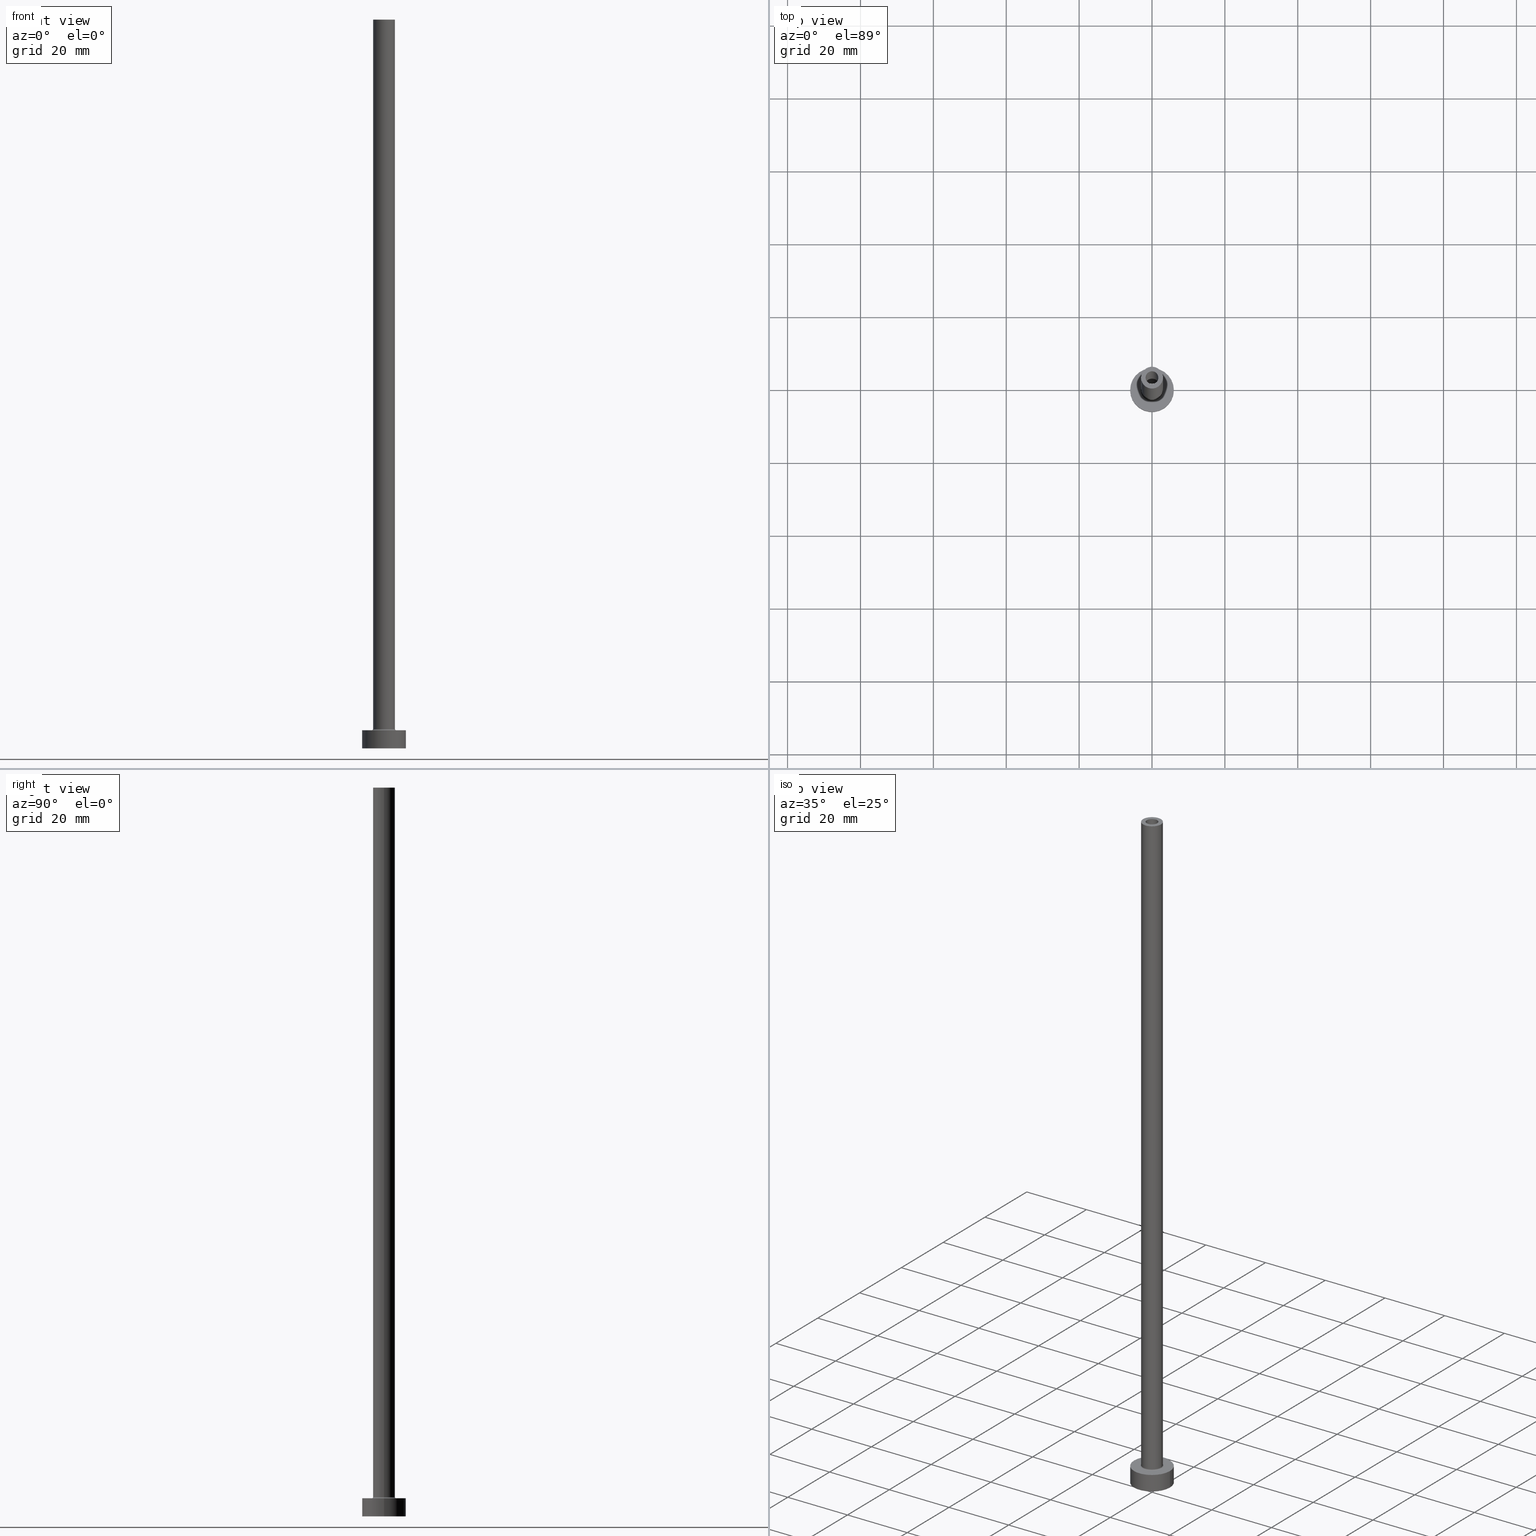
[diagram: canonical four-view strip — front | top / right | iso, engineering-drawing reading convention]
A machine part, canonical four-view strip (front | top / right | iso — engineering-drawing reading convention). The complete STEP part file that produces these views, byte-faithful:
ISO-10303-21;
HEADER;
FILE_DESCRIPTION (( 'STEP AP203' ),
    '1' );
FILE_NAME ('067c.STEP',
    '2023-02-13T12:00:21',
    ( '' ),
    ( '' ),
    'SwSTEP 2.0',
    'SolidWorks 2019',
    '' );
FILE_SCHEMA (( 'CONFIG_CONTROL_DESIGN' ));
ENDSEC;

DATA;
#1 = AXIS2_PLACEMENT_3D ( 'NONE', #203, #85, #125 ) ;
#2 = EDGE_CURVE ( 'NONE', #436, #320, #343, .T. ) ;
#3 = AXIS2_PLACEMENT_3D ( 'NONE', #213, #41, #35 ) ;
#4 = DIRECTION ( 'NONE',  ( -1.000000000000000000, 0.000000000000000000, 0.000000000000000000 ) ) ;
#5 = CARTESIAN_POINT ( 'NONE',  ( -1.899999999999999911, 0.000000000000000000, 160.3740115370177932 ) ) ;
#6 = PRODUCT_RELATED_PRODUCT_CATEGORY ( 'detail', '', ( #188 ) ) ;
#7 = DIRECTION ( 'NONE',  ( 0.000000000000000000, 0.000000000000000000, 1.000000000000000000 ) ) ;
#8 = DIRECTION ( 'NONE',  ( 0.000000000000000000, 0.000000000000000000, 1.000000000000000000 ) ) ;
#9 = PRODUCT_DEFINITION_SHAPE ( 'NONE', 'NONE',  #121 ) ;
#10 = CIRCLE ( 'NONE', #281, 1.899999999999999911 ) ;
#11 = CC_DESIGN_APPROVAL ( #94, ( #189 ) ) ;
#12 = EDGE_LOOP ( 'NONE', ( #244, #406 ) ) ;
#13 = DIRECTION ( 'NONE',  ( 0.000000000000000000, 0.000000000000000000, 1.000000000000000000 ) ) ;
#14 = PERSON_AND_ORGANIZATION ( #265, #325 ) ;
#15 = ORIENTED_EDGE ( 'NONE', *, *, #240, .F. ) ;
#16 = CARTESIAN_POINT ( 'NONE',  ( 0.000000000000000000, 0.000000000000000000, 200.0000000000000000 ) ) ;
#17 = CIRCLE ( 'NONE', #224, 1.750000000000000000 ) ;
#18 = CIRCLE ( 'NONE', #255, 3.000000000000000444 ) ;
#19 = APPROVAL_ROLE ( '' ) ;
#20 = EDGE_LOOP ( 'NONE', ( #223, #452, #358, #137 ) ) ;
#21 = SHAPE_DEFINITION_REPRESENTATION ( #9, #71 ) ;
#22 = EDGE_LOOP ( 'NONE', ( #299, #225 ) ) ;
#23 = FACE_BOUND ( 'NONE', #171, .T. ) ;
#24 = ORIENTED_EDGE ( 'NONE', *, *, #257, .T. ) ;
#25 = LOCAL_TIME ( 13, 0, 21.00000000000000000, #247 ) ;
#26 = EDGE_LOOP ( 'NONE', ( #202, #332 ) ) ;
#27 = DIRECTION ( 'NONE',  ( -0.000000000000000000, -0.000000000000000000, -1.000000000000000000 ) ) ;
#28 = PLANE ( 'NONE',  #107 ) ;
#29 = ADVANCED_FACE ( 'NONE', ( #377, #142 ), #28, .T. ) ;
#30 = DATE_TIME_ROLE ( 'creation_date' ) ;
#31 = ADVANCED_FACE ( 'NONE', ( #396 ), #317, .F. ) ;
#32 = EDGE_LOOP ( 'NONE', ( #283, #363 ) ) ;
#33 = VECTOR ( 'NONE', #77, 1000.000000000000000 ) ;
#34 = FACE_OUTER_BOUND ( 'NONE', #63, .T. ) ;
#35 = DIRECTION ( 'NONE',  ( 1.000000000000000000, 0.000000000000000000, 0.000000000000000000 ) ) ;
#36 =( LENGTH_UNIT ( ) NAMED_UNIT ( * ) SI_UNIT ( .MILLI., .METRE. ) );
#37 = CARTESIAN_POINT ( 'NONE',  ( -3.000000000000000444, 0.000000000000000000, 5.299999999999998934 ) ) ;
#38 = EDGE_CURVE ( 'NONE', #199, #229, #425, .T. ) ;
#39 = CYLINDRICAL_SURFACE ( 'NONE', #453, 3.000000000000000444 ) ;
#40 = AXIS2_PLACEMENT_3D ( 'NONE', #147, #280, #181 ) ;
#41 = DIRECTION ( 'NONE',  ( -0.000000000000000000, -0.000000000000000000, -1.000000000000000000 ) ) ;
#42 = DIRECTION ( 'NONE',  ( 0.000000000000000000, 0.000000000000000000, 1.000000000000000000 ) ) ;
#43 = CARTESIAN_POINT ( 'NONE',  ( 0.000000000000000000, 0.000000000000000000, 5.299999999999998934 ) ) ;
#44 = DIRECTION ( 'NONE',  ( 0.000000000000000000, 0.000000000000000000, -1.000000000000000000 ) ) ;
#45 = APPLICATION_PROTOCOL_DEFINITION ( 'international standard', 'config_control_design', 1994, #312 ) ;
#46 = ORIENTED_EDGE ( 'NONE', *, *, #108, .T. ) ;
#47 = EDGE_CURVE ( 'NONE', #446, #70, #357, .T. ) ;
#48 = VERTEX_POINT ( 'NONE', #385 ) ;
#49 = CARTESIAN_POINT ( 'NONE',  ( 0.000000000000000000, 0.000000000000000000, 200.0000000000000000 ) ) ;
#50 = CIRCLE ( 'NONE', #311, 1.750000000000000000 ) ;
#51 = APPROVAL_PERSON_ORGANIZATION ( #151, #282, #222 ) ;
#52 = EDGE_LOOP ( 'NONE', ( #248, #382, #449, #46 ) ) ;
#53 = COORDINATED_UNIVERSAL_TIME_OFFSET ( 1, 0, .AHEAD. ) ;
#54 = LINE ( 'NONE', #266, #109 ) ;
#55 = FACE_OUTER_BOUND ( 'NONE', #52, .T. ) ;
#56 = CARTESIAN_POINT ( 'NONE',  ( -1.750000000000000000, 0.000000000000000000, 200.0000000000000000 ) ) ;
#57 = AXIS2_PLACEMENT_3D ( 'NONE', #284, #8, #122 ) ;
#58 = APPROVAL_PERSON_ORGANIZATION ( #172, #418, #211 ) ;
#59 = DIRECTION ( 'NONE',  ( 0.000000000000000000, 0.000000000000000000, 1.000000000000000000 ) ) ;
#60 = ORIENTED_EDGE ( 'NONE', *, *, #47, .F. ) ;
#61 = DIRECTION ( 'NONE',  ( -1.000000000000000000, 0.000000000000000000, 0.000000000000000000 ) ) ;
#62 = APPROVAL_STATUS ( 'not_yet_approved' ) ;
#63 = EDGE_LOOP ( 'NONE', ( #89, #140, #186, #97 ) ) ;
#64 = CC_DESIGN_PERSON_AND_ORGANIZATION_ASSIGNMENT ( #228, #226, ( #189 ) ) ;
#65 = APPROVAL_DATE_TIME ( #334, #94 ) ;
#66 = AXIS2_PLACEMENT_3D ( 'NONE', #184, #44, #87 ) ;
#67 = DATE_AND_TIME ( #370, #100 ) ;
#68 = AXIS2_PLACEMENT_3D ( 'NONE', #183, #423, #245 ) ;
#69 = EDGE_LOOP ( 'NONE', ( #221, #24 ) ) ;
#70 = VERTEX_POINT ( 'NONE', #348 ) ;
#71 = ADVANCED_BREP_SHAPE_REPRESENTATION ( '067c', ( #154, #454 ), #407 ) ;
#72 = ADVANCED_FACE ( 'NONE', ( #34 ), #178, .T. ) ;
#73 = CARTESIAN_POINT ( 'NONE',  ( -1.899999999999999911, 0.000000000000000000, 0.000000000000000000 ) ) ;
#74 = PLANE ( 'NONE',  #399 ) ;
#75 = DIRECTION ( 'NONE',  ( 0.000000000000000000, 0.000000000000000000, 1.000000000000000000 ) ) ;
#76 = VECTOR ( 'NONE', #27, 1000.000000000000000 ) ;
#77 = DIRECTION ( 'NONE',  ( -0.000000000000000000, -0.000000000000000000, -1.000000000000000000 ) ) ;
#78 = ORIENTED_EDGE ( 'NONE', *, *, #308, .T. ) ;
#79 = CARTESIAN_POINT ( 'NONE',  ( 3.000000000000000444, 3.673940397442060361E-16, 5.299999999999998934 ) ) ;
#80 = DIRECTION ( 'NONE',  ( 0.000000000000000000, -1.000000000000000000, 0.000000000000000000 ) ) ;
#81 = PERSON_AND_ORGANIZATION_ROLE ( 'creator' ) ;
#82 = CIRCLE ( 'NONE', #378, 3.000000000000000444 ) ;
#83 = ORIENTED_EDGE ( 'NONE', *, *, #104, .F. ) ;
#84 = EDGE_CURVE ( 'NONE', #48, #210, #174, .T. ) ;
#85 = DIRECTION ( 'NONE',  ( 0.000000000000000000, 0.000000000000000000, 1.000000000000000000 ) ) ;
#86 = ORIENTED_EDGE ( 'NONE', *, *, #419, .F. ) ;
#87 = DIRECTION ( 'NONE',  ( -1.000000000000000000, 0.000000000000000000, 0.000000000000000000 ) ) ;
#88 = DIRECTION ( 'NONE',  ( 1.000000000000000000, 0.000000000000000000, 0.000000000000000000 ) ) ;
#89 = ORIENTED_EDGE ( 'NONE', *, *, #2, .F. ) ;
#90 = AXIS2_PLACEMENT_3D ( 'NONE', #461, #390, #249 ) ;
#91 = CIRCLE ( 'NONE', #68, 3.300000000000000266 ) ;
#92 = CARTESIAN_POINT ( 'NONE',  ( 0.000000000000000000, 0.000000000000000000, 200.0000000000000000 ) ) ;
#93 = DIRECTION ( 'NONE',  ( -1.000000000000000000, 0.000000000000000000, 0.000000000000000000 ) ) ;
#94 = APPROVAL ( #62, 'NEUR�EN�' ) ;
#95 = ADVANCED_FACE ( 'NONE', ( #389 ), #360, .F. ) ;
#96 = DIRECTION ( 'NONE',  ( 0.000000000000000000, 0.000000000000000000, 1.000000000000000000 ) ) ;
#97 = ORIENTED_EDGE ( 'NONE', *, *, #236, .T. ) ;
#98 = CARTESIAN_POINT ( 'NONE',  ( 3.000000000000000444, 3.673940397442060361E-16, 200.0000000000000000 ) ) ;
#99 = CIRCLE ( 'NONE', #401, 6.000000000000000888 ) ;
#100 = LOCAL_TIME ( 13, 0, 21.00000000000000000, #458 ) ;
#101 = DATE_TIME_ROLE ( 'classification_date' ) ;
#102 = DIRECTION ( 'NONE',  ( 0.000000000000000000, 0.000000000000000000, 1.000000000000000000 ) ) ;
#103 = ORIENTED_EDGE ( 'NONE', *, *, #108, .F. ) ;
#104 = EDGE_CURVE ( 'NONE', #320, #294, #212, .T. ) ;
#105 = EDGE_LOOP ( 'NONE', ( #15, #83, #78, #329 ) ) ;
#106 = DIRECTION ( 'NONE',  ( -1.000000000000000000, 1.224646799147353207E-16, 0.000000000000000000 ) ) ;
#107 = AXIS2_PLACEMENT_3D ( 'NONE', #417, #112, #234 ) ;
#108 = EDGE_CURVE ( 'NONE', #290, #413, #10, .T. ) ;
#109 = VECTOR ( 'NONE', #331, 1000.000000000000000 ) ;
#110 = ORIENTED_EDGE ( 'NONE', *, *, #441, .T. ) ;
#111 = DIRECTION ( 'NONE',  ( 1.000000000000000000, 0.000000000000000000, -0.000000000000000000 ) ) ;
#112 = DIRECTION ( 'NONE',  ( 0.000000000000000000, 0.000000000000000000, 1.000000000000000000 ) ) ;
#113 = ADVANCED_FACE ( 'NONE', ( #55 ), #238, .F. ) ;
#114 = DIRECTION ( 'NONE',  ( -0.000000000000000000, -0.000000000000000000, -1.000000000000000000 ) ) ;
#115 = LINE ( 'NONE', #5, #324 ) ;
#116 = CARTESIAN_POINT ( 'NONE',  ( 0.000000000000000000, 0.000000000000000000, 155.0000000000000284 ) ) ;
#117 = AXIS2_PLACEMENT_3D ( 'NONE', #173, #143, #239 ) ;
#118 = ORIENTED_EDGE ( 'NONE', *, *, #276, .F. ) ;
#119 = CC_DESIGN_APPROVAL ( #418, ( #132 ) ) ;
#120 = CARTESIAN_POINT ( 'NONE',  ( 0.000000000000000000, 0.000000000000000000, 5.299999999999998934 ) ) ;
#121 = PRODUCT_DEFINITION ( 'NEZN�M�', '', #132, #193 ) ;
#122 = DIRECTION ( 'NONE',  ( 1.000000000000000000, 0.000000000000000000, 0.000000000000000000 ) ) ;
#123 = APPROVAL_STATUS ( 'not_yet_approved' ) ;
#124 = EDGE_LOOP ( 'NONE', ( #155, #263, #326, #60 ) ) ;
#125 = DIRECTION ( 'NONE',  ( 1.000000000000000000, 0.000000000000000000, 0.000000000000000000 ) ) ;
#126 = EDGE_CURVE ( 'NONE', #403, #229, #148, .T. ) ;
#127 = AXIS2_PLACEMENT_3D ( 'NONE', #337, #230, #371 ) ;
#128 = LOCAL_TIME ( 13, 0, 21.00000000000000000, #447 ) ;
#129 = CARTESIAN_POINT ( 'NONE',  ( 0.000000000000000000, 0.000000000000000000, 155.0000000000000284 ) ) ;
#130 = CARTESIAN_POINT ( 'NONE',  ( 1.750000000000000000, 2.143131898507867804E-16, 200.0000000000000000 ) ) ;
#131 = CIRCLE ( 'NONE', #273, 3.000000000000000444 ) ;
#132 = PRODUCT_DEFINITION_FORMATION_WITH_SPECIFIED_SOURCE ( 'LIBOVOLN�', '', #188, .NOT_KNOWN. ) ;
#133 = CARTESIAN_POINT ( 'NONE',  ( 3.300000000000000266, 0.000000000000000000, 4.999999999999999112 ) ) ;
#134 = APPROVAL_DATE_TIME ( #67, #418 ) ;
#135 = EDGE_CURVE ( 'NONE', #210, #48, #346, .T. ) ;
#136 = CARTESIAN_POINT ( 'NONE',  ( 0.000000000000000000, 0.000000000000000000, 5.299999999999998934 ) ) ;
#137 = ORIENTED_EDGE ( 'NONE', *, *, #198, .F. ) ;
#138 = EDGE_LOOP ( 'NONE', ( #272, #341, #163, #209 ) ) ;
#139 = EDGE_CURVE ( 'NONE', #446, #372, #50, .T. ) ;
#140 = ORIENTED_EDGE ( 'NONE', *, *, #235, .F. ) ;
#141 = AXIS2_PLACEMENT_3D ( 'NONE', #443, #205, #106 ) ;
#142 = FACE_OUTER_BOUND ( 'NONE', #26, .T. ) ;
#143 = DIRECTION ( 'NONE',  ( 0.000000000000000000, 0.000000000000000000, 1.000000000000000000 ) ) ;
#144 = DIRECTION ( 'NONE',  ( 0.000000000000000000, 0.000000000000000000, -1.000000000000000000 ) ) ;
#145 = CC_DESIGN_PERSON_AND_ORGANIZATION_ASSIGNMENT ( #408, #442, ( #132 ) ) ;
#146 = LINE ( 'NONE', #392, #242 ) ;
#147 = CARTESIAN_POINT ( 'NONE',  ( 0.000000000000000000, 0.000000000000000000, 200.0000000000000000 ) ) ;
#148 = CIRCLE ( 'NONE', #1, 6.000000000000000888 ) ;
#149 = DIRECTION ( 'NONE',  ( 1.000000000000000000, 0.000000000000000000, 0.000000000000000000 ) ) ;
#150 = FACE_OUTER_BOUND ( 'NONE', #124, .T. ) ;
#151 = PERSON_AND_ORGANIZATION ( #265, #325 ) ;
#152 = EDGE_CURVE ( 'NONE', #208, #199, #99, .T. ) ;
#153 = EDGE_LOOP ( 'NONE', ( #310, #110 ) ) ;
#154 = MANIFOLD_SOLID_BREP ( 'Odebrat vysunut�m4', #445 ) ;
#155 = ORIENTED_EDGE ( 'NONE', *, *, #139, .T. ) ;
#156 = APPROVAL_DATE_TIME ( #395, #282 ) ;
#157 = DIRECTION ( 'NONE',  ( 1.000000000000000000, 0.000000000000000000, 0.000000000000000000 ) ) ;
#158 = AXIS2_PLACEMENT_3D ( 'NONE', #129, #318, #220 ) ;
#159 = AXIS2_PLACEMENT_3D ( 'NONE', #204, #114, #274 ) ;
#160 = EDGE_LOOP ( 'NONE', ( #433, #297 ) ) ;
#161 = EDGE_CURVE ( 'NONE', #372, #446, #264, .T. ) ;
#162 = EDGE_LOOP ( 'NONE', ( #409, #338, #414, #438 ) ) ;
#163 = ORIENTED_EDGE ( 'NONE', *, *, #342, .F. ) ;
#164 = CARTESIAN_POINT ( 'NONE',  ( 0.000000000000000000, 0.000000000000000000, 200.0000000000000000 ) ) ;
#165 = AXIS2_PLACEMENT_3D ( 'NONE', #120, #349, #149 ) ;
#166 = CC_DESIGN_SECURITY_CLASSIFICATION ( #189, ( #132 ) ) ;
#167 = DIRECTION ( 'NONE',  ( 1.000000000000000000, 0.000000000000000000, 0.000000000000000000 ) ) ;
#168 = VERTEX_POINT ( 'NONE', #322 ) ;
#169 = VERTEX_POINT ( 'NONE', #133 ) ;
#170 = DIRECTION ( 'NONE',  ( 0.000000000000000000, 0.000000000000000000, -1.000000000000000000 ) ) ;
#171 = EDGE_LOOP ( 'NONE', ( #103, #275 ) ) ;
#172 = PERSON_AND_ORGANIZATION ( #265, #325 ) ;
#173 = CARTESIAN_POINT ( 'NONE',  ( 0.000000000000000000, 0.000000000000000000, 5.000000000000000000 ) ) ;
#174 = CIRCLE ( 'NONE', #279, 1.899999999999999911 ) ;
#175 = CIRCLE ( 'NONE', #3, 1.899999999999999911 ) ;
#176 = CARTESIAN_POINT ( 'NONE',  ( -1.750000000000000000, 0.000000000000000000, 200.0000000000000000 ) ) ;
#177 = EDGE_CURVE ( 'NONE', #70, #168, #17, .T. ) ;
#178 = CYLINDRICAL_SURFACE ( 'NONE', #405, 3.000000000000000444 ) ;
#179 = CARTESIAN_POINT ( 'NONE',  ( 0.000000000000000000, 0.000000000000000000, 200.0000000000000000 ) ) ;
#180 = PLANE ( 'NONE',  #368 ) ;
#181 = DIRECTION ( 'NONE',  ( -1.000000000000000000, 0.000000000000000000, 0.000000000000000000 ) ) ;
#182 = CIRCLE ( 'NONE', #141, 0.2999999999999999334 ) ;
#183 = CARTESIAN_POINT ( 'NONE',  ( 0.000000000000000000, 0.000000000000000000, 5.000000000000000000 ) ) ;
#184 = CARTESIAN_POINT ( 'NONE',  ( 0.000000000000000000, 0.000000000000000000, 160.3740115370177932 ) ) ;
#185 = DIRECTION ( 'NONE',  ( 1.000000000000000000, 0.000000000000000000, 0.000000000000000000 ) ) ;
#186 = ORIENTED_EDGE ( 'NONE', *, *, #198, .T. ) ;
#187 = CARTESIAN_POINT ( 'NONE',  ( 0.000000000000000000, 0.000000000000000000, 200.0000000000000000 ) ) ;
#188 = PRODUCT ( '067c', '067c', '', ( #323 ) ) ;
#189 = SECURITY_CLASSIFICATION ( '', '', #305 ) ;
#190 = DIRECTION ( 'NONE',  ( 1.000000000000000000, 0.000000000000000000, 0.000000000000000000 ) ) ;
#191 = CARTESIAN_POINT ( 'NONE',  ( 0.000000000000000000, 0.000000000000000000, 5.000000000000000000 ) ) ;
#192 = CALENDAR_DATE ( 2023, 13, 2 ) ;
#193 = DESIGN_CONTEXT ( 'detailed design', #386, 'design' ) ;
#194 = CC_DESIGN_PERSON_AND_ORGANIZATION_ASSIGNMENT ( #14, #285, ( #188 ) ) ;
#195 = DIRECTION ( 'NONE',  ( 0.000000000000000000, 0.000000000000000000, 1.000000000000000000 ) ) ;
#196 = ORIENTED_EDGE ( 'NONE', *, *, #330, .T. ) ;
#197 = ADVANCED_FACE ( 'NONE', ( #219 ), #356, .F. ) ;
#198 = EDGE_CURVE ( 'NONE', #314, #294, #361, .T. ) ;
#199 = VERTEX_POINT ( 'NONE', #435 ) ;
#200 = CYLINDRICAL_SURFACE ( 'NONE', #159, 6.000000000000000888 ) ;
#201 = CALENDAR_DATE ( 2023, 13, 2 ) ;
#202 = ORIENTED_EDGE ( 'NONE', *, *, #152, .T. ) ;
#203 = CARTESIAN_POINT ( 'NONE',  ( 0.000000000000000000, 0.000000000000000000, 0.000000000000000000 ) ) ;
#204 = CARTESIAN_POINT ( 'NONE',  ( 0.000000000000000000, 0.000000000000000000, 5.000000000000000000 ) ) ;
#205 = DIRECTION ( 'NONE',  ( 1.224646799147353207E-16, 1.000000000000000000, -0.000000000000000000 ) ) ;
#206 = AXIS2_PLACEMENT_3D ( 'NONE', #92, #42, #292 ) ;
#207 = AXIS2_PLACEMENT_3D ( 'NONE', #191, #254, #61 ) ;
#208 = VERTEX_POINT ( 'NONE', #296 ) ;
#209 = ORIENTED_EDGE ( 'NONE', *, *, #308, .F. ) ;
#210 = VERTEX_POINT ( 'NONE', #259 ) ;
#211 = APPROVAL_ROLE ( '' ) ;
#212 = CIRCLE ( 'NONE', #57, 3.000000000000000444 ) ;
#213 = CARTESIAN_POINT ( 'NONE',  ( 0.000000000000000000, 0.000000000000000000, 0.000000000000000000 ) ) ;
#214 = FACE_BOUND ( 'NONE', #69, .T. ) ;
#215 = DIRECTION ( 'NONE',  ( 1.000000000000000000, 0.000000000000000000, 0.000000000000000000 ) ) ;
#216 = ORIENTED_EDGE ( 'NONE', *, *, #161, .T. ) ;
#217 = DIRECTION ( 'NONE',  ( 0.000000000000000000, 0.000000000000000000, -1.000000000000000000 ) ) ;
#218 = AXIS2_PLACEMENT_3D ( 'NONE', #277, #243, #93 ) ;
#219 = FACE_OUTER_BOUND ( 'NONE', #261, .T. ) ;
#220 = DIRECTION ( 'NONE',  ( 1.000000000000000000, 0.000000000000000000, 0.000000000000000000 ) ) ;
#221 = ORIENTED_EDGE ( 'NONE', *, *, #177, .T. ) ;
#222 = APPROVAL_ROLE ( '' ) ;
#223 = ORIENTED_EDGE ( 'NONE', *, *, #441, .F. ) ;
#224 = AXIS2_PLACEMENT_3D ( 'NONE', #432, #13, #252 ) ;
#225 = ORIENTED_EDGE ( 'NONE', *, *, #359, .T. ) ;
#226 = PERSON_AND_ORGANIZATION_ROLE ( 'classification_officer' ) ;
#227 = VECTOR ( 'NONE', #271, 1000.000000000000000 ) ;
#228 = PERSON_AND_ORGANIZATION ( #265, #325 ) ;
#229 = VERTEX_POINT ( 'NONE', #450 ) ;
#230 = DIRECTION ( 'NONE',  ( 0.000000000000000000, 0.000000000000000000, 1.000000000000000000 ) ) ;
#231 = ORIENTED_EDGE ( 'NONE', *, *, #47, .T. ) ;
#232 = CIRCLE ( 'NONE', #127, 1.750000000000000000 ) ;
#233 = EDGE_LOOP ( 'NONE', ( #335, #250, #253, #118 ) ) ;
#234 = DIRECTION ( 'NONE',  ( 1.000000000000000000, 0.000000000000000000, -0.000000000000000000 ) ) ;
#235 = EDGE_CURVE ( 'NONE', #314, #436, #131, .T. ) ;
#236 = EDGE_CURVE ( 'NONE', #294, #320, #82, .T. ) ;
#237 = FACE_BOUND ( 'NONE', #160, .T. ) ;
#238 = CYLINDRICAL_SURFACE ( 'NONE', #218, 1.899999999999999911 ) ;
#239 = DIRECTION ( 'NONE',  ( 1.000000000000000000, 0.000000000000000000, 0.000000000000000000 ) ) ;
#240 = EDGE_CURVE ( 'NONE', #294, #364, #182, .T. ) ;
#241 = AXIS2_PLACEMENT_3D ( 'NONE', #49, #353, #426 ) ;
#242 = VECTOR ( 'NONE', #217, 1000.000000000000000 ) ;
#243 = DIRECTION ( 'NONE',  ( 0.000000000000000000, 0.000000000000000000, -1.000000000000000000 ) ) ;
#244 = ORIENTED_EDGE ( 'NONE', *, *, #126, .F. ) ;
#245 = DIRECTION ( 'NONE',  ( 1.000000000000000000, 0.000000000000000000, 0.000000000000000000 ) ) ;
#246 =( NAMED_UNIT ( * ) SI_UNIT ( $, .STERADIAN. ) SOLID_ANGLE_UNIT ( ) );
#247 = COORDINATED_UNIVERSAL_TIME_OFFSET ( 1, 0, .AHEAD. ) ;
#248 = ORIENTED_EDGE ( 'NONE', *, *, #333, .F. ) ;
#249 = DIRECTION ( 'NONE',  ( 1.000000000000000000, 0.000000000000000000, 0.000000000000000000 ) ) ;
#250 = ORIENTED_EDGE ( 'NONE', *, *, #38, .T. ) ;
#251 = EDGE_CURVE ( 'NONE', #229, #403, #397, .T. ) ;
#252 = DIRECTION ( 'NONE',  ( 1.000000000000000000, 0.000000000000000000, 0.000000000000000000 ) ) ;
#253 = ORIENTED_EDGE ( 'NONE', *, *, #251, .T. ) ;
#254 = DIRECTION ( 'NONE',  ( -0.000000000000000000, -0.000000000000000000, -1.000000000000000000 ) ) ;
#255 = AXIS2_PLACEMENT_3D ( 'NONE', #16, #96, #295 ) ;
#256 = CARTESIAN_POINT ( 'NONE',  ( -6.000000000000000888, 0.000000000000000000, 0.000000000000000000 ) ) ;
#257 = EDGE_CURVE ( 'NONE', #168, #70, #232, .T. ) ;
#258 = DIRECTION ( 'NONE',  ( 1.000000000000000000, 0.000000000000000000, 0.000000000000000000 ) ) ;
#259 = CARTESIAN_POINT ( 'NONE',  ( -1.899999999999999911, 0.000000000000000000, 155.0000000000000284 ) ) ;
#260 = PERSON_AND_ORGANIZATION ( #265, #325 ) ;
#261 = EDGE_LOOP ( 'NONE', ( #304, #267, #196, #306 ) ) ;
#262 = CALENDAR_DATE ( 2023, 13, 2 ) ;
#263 = ORIENTED_EDGE ( 'NONE', *, *, #419, .T. ) ;
#264 = CIRCLE ( 'NONE', #206, 1.750000000000000000 ) ;
#265 = PERSON ( 'NEUR�EN�', 'NEUR�EN�', 'NEUR�EN�', ('NEUR�EN�'), ('NEUR�EN�'), ('NEUR�EN�') ) ;
#266 = CARTESIAN_POINT ( 'NONE',  ( 1.750000000000000000, 2.143131898507867804E-16, 200.0000000000000000 ) ) ;
#267 = ORIENTED_EDGE ( 'NONE', *, *, #333, .T. ) ;
#268 = ADVANCED_FACE ( 'NONE', ( #23, #303 ), #412, .F. ) ;
#269 = PERSON_AND_ORGANIZATION_ROLE ( 'creator' ) ;
#270 = DIRECTION ( 'NONE',  ( 0.000000000000000000, 0.000000000000000000, 1.000000000000000000 ) ) ;
#271 = DIRECTION ( 'NONE',  ( -0.000000000000000000, -0.000000000000000000, -1.000000000000000000 ) ) ;
#272 = ORIENTED_EDGE ( 'NONE', *, *, #236, .F. ) ;
#273 = AXIS2_PLACEMENT_3D ( 'NONE', #367, #59, #309 ) ;
#274 = DIRECTION ( 'NONE',  ( -1.000000000000000000, 0.000000000000000000, 0.000000000000000000 ) ) ;
#275 = ORIENTED_EDGE ( 'NONE', *, *, #330, .F. ) ;
#276 = EDGE_CURVE ( 'NONE', #208, #403, #347, .T. ) ;
#277 = CARTESIAN_POINT ( 'NONE',  ( 0.000000000000000000, 0.000000000000000000, 160.3740115370177932 ) ) ;
#278 =( NAMED_UNIT ( * ) PLANE_ANGLE_UNIT ( ) SI_UNIT ( $, .RADIAN. ) );
#279 = AXIS2_PLACEMENT_3D ( 'NONE', #434, #321, #185 ) ;
#280 = DIRECTION ( 'NONE',  ( 0.000000000000000000, 0.000000000000000000, -1.000000000000000000 ) ) ;
#281 = AXIS2_PLACEMENT_3D ( 'NONE', #429, #439, #258 ) ;
#282 = APPROVAL ( #123, 'NEUR�EN�' ) ;
#283 = ORIENTED_EDGE ( 'NONE', *, *, #135, .F. ) ;
#284 = CARTESIAN_POINT ( 'NONE',  ( 0.000000000000000000, 0.000000000000000000, 5.299999999999998934 ) ) ;
#285 = PERSON_AND_ORGANIZATION_ROLE ( 'design_owner' ) ;
#286 = DIRECTION ( 'NONE',  ( -1.000000000000000000, 0.000000000000000000, 0.000000000000000000 ) ) ;
#287 = EDGE_CURVE ( 'NONE', #210, #290, #115, .T. ) ;
#288 = CARTESIAN_POINT ( 'NONE',  ( 0.000000000000000000, 0.000000000000000000, 5.000000000000000000 ) ) ;
#289 = APPLICATION_PROTOCOL_DEFINITION ( 'international standard', 'config_control_design', 1994, #386 ) ;
#290 = VERTEX_POINT ( 'NONE', #73 ) ;
#291 = CARTESIAN_POINT ( 'NONE',  ( -3.000000000000000444, 0.000000000000000000, 200.0000000000000000 ) ) ;
#292 = DIRECTION ( 'NONE',  ( 1.000000000000000000, 0.000000000000000000, 0.000000000000000000 ) ) ;
#293 = CIRCLE ( 'NONE', #117, 6.000000000000000888 ) ;
#294 = VERTEX_POINT ( 'NONE', #37 ) ;
#295 = DIRECTION ( 'NONE',  ( 1.000000000000000000, 0.000000000000000000, 0.000000000000000000 ) ) ;
#296 = CARTESIAN_POINT ( 'NONE',  ( -6.000000000000000888, 0.000000000000000000, 5.000000000000000000 ) ) ;
#297 = ORIENTED_EDGE ( 'NONE', *, *, #161, .F. ) ;
#298 = CC_DESIGN_PERSON_AND_ORGANIZATION_ASSIGNMENT ( #260, #269, ( #132 ) ) ;
#299 = ORIENTED_EDGE ( 'NONE', *, *, #342, .T. ) ;
#300 = ADVANCED_FACE ( 'NONE', ( #150 ), #428, .F. ) ;
#301 = AXIS2_PLACEMENT_3D ( 'NONE', #393, #80, #170 ) ;
#302 = DIRECTION ( 'NONE',  ( 0.000000000000000000, 0.000000000000000000, 1.000000000000000000 ) ) ;
#303 = FACE_OUTER_BOUND ( 'NONE', #12, .T. ) ;
#304 = ORIENTED_EDGE ( 'NONE', *, *, #135, .T. ) ;
#305 = SECURITY_CLASSIFICATION_LEVEL ( 'unclassified' ) ;
#306 = ORIENTED_EDGE ( 'NONE', *, *, #287, .F. ) ;
#307 = CC_DESIGN_DATE_AND_TIME_ASSIGNMENT ( #350, #30, ( #121 ) ) ;
#308 = EDGE_CURVE ( 'NONE', #320, #169, #387, .T. ) ;
#309 = DIRECTION ( 'NONE',  ( 1.000000000000000000, 0.000000000000000000, 0.000000000000000000 ) ) ;
#310 = ORIENTED_EDGE ( 'NONE', *, *, #235, .T. ) ;
#311 = AXIS2_PLACEMENT_3D ( 'NONE', #187, #398, #190 ) ;
#312 = APPLICATION_CONTEXT ( 'configuration controlled 3d designs of mechanical parts and assemblies' ) ;
#313 = CARTESIAN_POINT ( 'NONE',  ( 6.000000000000000888, 7.347880794884120722E-16, 5.000000000000000000 ) ) ;
#314 = VERTEX_POINT ( 'NONE', #345 ) ;
#315 = EDGE_CURVE ( 'NONE', #199, #208, #293, .T. ) ;
#316 = DIRECTION ( 'NONE',  ( -0.000000000000000000, -0.000000000000000000, -1.000000000000000000 ) ) ;
#317 = TOROIDAL_SURFACE ( 'NONE', #422, 3.300000000000000266, 0.2999999999999999889 ) ;
#318 = DIRECTION ( 'NONE',  ( 0.000000000000000000, 0.000000000000000000, 1.000000000000000000 ) ) ;
#319 = ADVANCED_FACE ( 'NONE', ( #388 ), #39, .T. ) ;
#320 = VERTEX_POINT ( 'NONE', #79 ) ;
#321 = DIRECTION ( 'NONE',  ( 0.000000000000000000, 0.000000000000000000, 1.000000000000000000 ) ) ;
#322 = CARTESIAN_POINT ( 'NONE',  ( 1.750000000000000000, 2.143131898507867804E-16, 155.0000000000000284 ) ) ;
#323 = MECHANICAL_CONTEXT ( 'NONE', #312, 'mechanical' ) ;
#324 = VECTOR ( 'NONE', #351, 1000.000000000000000 ) ;
#325 = ORGANIZATION ( 'NEUR�EN�', 'NEUR�EN�', '' ) ;
#326 = ORIENTED_EDGE ( 'NONE', *, *, #177, .F. ) ;
#327 = FACE_OUTER_BOUND ( 'NONE', #233, .T. ) ;
#328 = ADVANCED_FACE ( 'NONE', ( #355 ), #362, .F. ) ;
#329 = ORIENTED_EDGE ( 'NONE', *, *, #359, .F. ) ;
#330 = EDGE_CURVE ( 'NONE', #413, #290, #175, .T. ) ;
#331 = DIRECTION ( 'NONE',  ( 0.000000000000000000, 0.000000000000000000, -1.000000000000000000 ) ) ;
#332 = ORIENTED_EDGE ( 'NONE', *, *, #315, .T. ) ;
#333 = EDGE_CURVE ( 'NONE', #48, #413, #146, .T. ) ;
#334 = DATE_AND_TIME ( #201, #379 ) ;
#335 = ORIENTED_EDGE ( 'NONE', *, *, #315, .F. ) ;
#336 = DATE_AND_TIME ( #262, #128 ) ;
#337 = CARTESIAN_POINT ( 'NONE',  ( 0.000000000000000000, 0.000000000000000000, 155.0000000000000284 ) ) ;
#338 = ORIENTED_EDGE ( 'NONE', *, *, #152, .F. ) ;
#339 = VECTOR ( 'NONE', #144, 1000.000000000000000 ) ;
#340 = LOCAL_TIME ( 13, 0, 21.00000000000000000, #53 ) ;
#341 = ORIENTED_EDGE ( 'NONE', *, *, #240, .T. ) ;
#342 = EDGE_CURVE ( 'NONE', #169, #364, #402, .T. ) ;
#343 = LINE ( 'NONE', #374, #227 ) ;
#344 = CALENDAR_DATE ( 2023, 13, 2 ) ;
#345 = CARTESIAN_POINT ( 'NONE',  ( -3.000000000000000444, 0.000000000000000000, 200.0000000000000000 ) ) ;
#346 = CIRCLE ( 'NONE', #158, 1.899999999999999911 ) ;
#347 = LINE ( 'NONE', #459, #76 ) ;
#348 = CARTESIAN_POINT ( 'NONE',  ( -1.750000000000000000, 0.000000000000000000, 155.0000000000000284 ) ) ;
#349 = DIRECTION ( 'NONE',  ( 0.000000000000000000, 0.000000000000000000, 1.000000000000000000 ) ) ;
#350 = DATE_AND_TIME ( #344, #340 ) ;
#351 = DIRECTION ( 'NONE',  ( 0.000000000000000000, 0.000000000000000000, -1.000000000000000000 ) ) ;
#352 = CC_DESIGN_DATE_AND_TIME_ASSIGNMENT ( #336, #101, ( #189 ) ) ;
#353 = DIRECTION ( 'NONE',  ( 0.000000000000000000, 0.000000000000000000, -1.000000000000000000 ) ) ;
#354 = CARTESIAN_POINT ( 'NONE',  ( -3.300000000000000266, 4.041334437186266003E-16, 4.999999999999999112 ) ) ;
#355 = FACE_OUTER_BOUND ( 'NONE', #105, .T. ) ;
#356 = CYLINDRICAL_SURFACE ( 'NONE', #66, 1.899999999999999911 ) ;
#357 = LINE ( 'NONE', #176, #339 ) ;
#358 = ORIENTED_EDGE ( 'NONE', *, *, #104, .T. ) ;
#359 = EDGE_CURVE ( 'NONE', #364, #169, #91, .T. ) ;
#360 = CYLINDRICAL_SURFACE ( 'NONE', #241, 1.750000000000000000 ) ;
#361 = LINE ( 'NONE', #291, #415 ) ;
#362 = TOROIDAL_SURFACE ( 'NONE', #165, 3.300000000000000266, 0.2999999999999999889 ) ;
#363 = ORIENTED_EDGE ( 'NONE', *, *, #84, .F. ) ;
#364 = VERTEX_POINT ( 'NONE', #354 ) ;
#365 = CARTESIAN_POINT ( 'NONE',  ( 1.899999999999999911, 2.326828918379971365E-16, 0.000000000000000000 ) ) ;
#366 = AXIS2_PLACEMENT_3D ( 'NONE', #376, #75, #111 ) ;
#367 = CARTESIAN_POINT ( 'NONE',  ( 0.000000000000000000, 0.000000000000000000, 200.0000000000000000 ) ) ;
#368 = AXIS2_PLACEMENT_3D ( 'NONE', #116, #394, #391 ) ;
#369 = ADVANCED_FACE ( 'NONE', ( #214, #427 ), #180, .F. ) ;
#370 = CALENDAR_DATE ( 2023, 13, 2 ) ;
#371 = DIRECTION ( 'NONE',  ( 1.000000000000000000, 0.000000000000000000, 0.000000000000000000 ) ) ;
#372 = VERTEX_POINT ( 'NONE', #130 ) ;
#373 = COORDINATED_UNIVERSAL_TIME_OFFSET ( 1, 0, .AHEAD. ) ;
#374 = CARTESIAN_POINT ( 'NONE',  ( 3.000000000000000444, 3.673940397442060361E-16, 200.0000000000000000 ) ) ;
#375 = DIRECTION ( 'NONE',  ( 1.000000000000000000, 0.000000000000000000, -0.000000000000000000 ) ) ;
#376 = CARTESIAN_POINT ( 'NONE',  ( 0.000000000000000000, 0.000000000000000000, 0.000000000000000000 ) ) ;
#377 = FACE_BOUND ( 'NONE', #22, .T. ) ;
#378 = AXIS2_PLACEMENT_3D ( 'NONE', #136, #270, #167 ) ;
#379 = LOCAL_TIME ( 13, 0, 21.00000000000000000, #373 ) ;
#380 = UNCERTAINTY_MEASURE_WITH_UNIT (LENGTH_MEASURE( 1.000000000000000082E-05 ), #36, 'distance_accuracy_value', 'NONE');
#381 = CARTESIAN_POINT ( 'NONE',  ( 0.000000000000000000, 0.000000000000000000, 0.000000000000000000 ) ) ;
#382 = ORIENTED_EDGE ( 'NONE', *, *, #84, .T. ) ;
#383 = CC_DESIGN_PERSON_AND_ORGANIZATION_ASSIGNMENT ( #424, #81, ( #121 ) ) ;
#384 = FACE_OUTER_BOUND ( 'NONE', #153, .T. ) ;
#385 = CARTESIAN_POINT ( 'NONE',  ( 1.899999999999999911, 2.326828918379971365E-16, 155.0000000000000284 ) ) ;
#386 = APPLICATION_CONTEXT ( 'configuration controlled 3d designs of mechanical parts and assemblies' ) ;
#387 = CIRCLE ( 'NONE', #301, 0.2999999999999999334 ) ;
#388 = FACE_OUTER_BOUND ( 'NONE', #20, .T. ) ;
#389 = FACE_OUTER_BOUND ( 'NONE', #451, .T. ) ;
#390 = DIRECTION ( 'NONE',  ( -0.000000000000000000, -0.000000000000000000, -1.000000000000000000 ) ) ;
#391 = DIRECTION ( 'NONE',  ( 1.000000000000000000, 0.000000000000000000, -0.000000000000000000 ) ) ;
#392 = CARTESIAN_POINT ( 'NONE',  ( 1.899999999999999911, 2.326828918379971365E-16, 160.3740115370177932 ) ) ;
#393 = CARTESIAN_POINT ( 'NONE',  ( 3.300000000000000266, 0.000000000000000000, 5.299999999999998934 ) ) ;
#394 = DIRECTION ( 'NONE',  ( 0.000000000000000000, 0.000000000000000000, 1.000000000000000000 ) ) ;
#395 = DATE_AND_TIME ( #192, #25 ) ;
#396 = FACE_OUTER_BOUND ( 'NONE', #138, .T. ) ;
#397 = CIRCLE ( 'NONE', #437, 6.000000000000000888 ) ;
#398 = DIRECTION ( 'NONE',  ( 0.000000000000000000, 0.000000000000000000, 1.000000000000000000 ) ) ;
#399 = AXIS2_PLACEMENT_3D ( 'NONE', #164, #302, #375 ) ;
#400 = DIRECTION ( 'NONE',  ( 0.000000000000000000, 0.000000000000000000, 1.000000000000000000 ) ) ;
#401 = AXIS2_PLACEMENT_3D ( 'NONE', #288, #195, #157 ) ;
#402 = CIRCLE ( 'NONE', #90, 3.300000000000000266 ) ;
#403 = VERTEX_POINT ( 'NONE', #256 ) ;
#404 = CYLINDRICAL_SURFACE ( 'NONE', #207, 6.000000000000000888 ) ;
#405 = AXIS2_PLACEMENT_3D ( 'NONE', #460, #420, #286 ) ;
#406 = ORIENTED_EDGE ( 'NONE', *, *, #251, .F. ) ;
#407 =( GEOMETRIC_REPRESENTATION_CONTEXT ( 3 ) GLOBAL_UNCERTAINTY_ASSIGNED_CONTEXT ( ( #380 ) ) GLOBAL_UNIT_ASSIGNED_CONTEXT ( ( #36, #278, #246 ) ) REPRESENTATION_CONTEXT ( 'NONE', 'WORKASPACE' ) );
#408 = PERSON_AND_ORGANIZATION ( #265, #325 ) ;
#409 = ORIENTED_EDGE ( 'NONE', *, *, #38, .F. ) ;
#410 = ADVANCED_FACE ( 'NONE', ( #327 ), #404, .T. ) ;
#411 = PERSON_AND_ORGANIZATION ( #265, #325 ) ;
#412 = PLANE ( 'NONE',  #366 ) ;
#413 = VERTEX_POINT ( 'NONE', #365 ) ;
#414 = ORIENTED_EDGE ( 'NONE', *, *, #276, .T. ) ;
#415 = VECTOR ( 'NONE', #421, 1000.000000000000000 ) ;
#416 = CC_DESIGN_APPROVAL ( #282, ( #121 ) ) ;
#417 = CARTESIAN_POINT ( 'NONE',  ( 0.000000000000000000, 0.000000000000000000, 5.000000000000000000 ) ) ;
#418 = APPROVAL ( #455, 'NEUR�EN�' ) ;
#419 = EDGE_CURVE ( 'NONE', #372, #168, #54, .T. ) ;
#420 = DIRECTION ( 'NONE',  ( -0.000000000000000000, -0.000000000000000000, -1.000000000000000000 ) ) ;
#421 = DIRECTION ( 'NONE',  ( -0.000000000000000000, -0.000000000000000000, -1.000000000000000000 ) ) ;
#422 = AXIS2_PLACEMENT_3D ( 'NONE', #43, #7, #215 ) ;
#423 = DIRECTION ( 'NONE',  ( -0.000000000000000000, -0.000000000000000000, -1.000000000000000000 ) ) ;
#424 = PERSON_AND_ORGANIZATION ( #265, #325 ) ;
#425 = LINE ( 'NONE', #313, #33 ) ;
#426 = DIRECTION ( 'NONE',  ( -1.000000000000000000, 0.000000000000000000, 0.000000000000000000 ) ) ;
#427 = FACE_OUTER_BOUND ( 'NONE', #32, .T. ) ;
#428 = CYLINDRICAL_SURFACE ( 'NONE', #40, 1.750000000000000000 ) ;
#429 = CARTESIAN_POINT ( 'NONE',  ( 0.000000000000000000, 0.000000000000000000, 0.000000000000000000 ) ) ;
#430 = APPROVAL_PERSON_ORGANIZATION ( #411, #94, #19 ) ;
#431 = CARTESIAN_POINT ( 'NONE',  ( 0.000000000000000000, 0.000000000000000000, 0.000000000000000000 ) ) ;
#432 = CARTESIAN_POINT ( 'NONE',  ( 0.000000000000000000, 0.000000000000000000, 155.0000000000000284 ) ) ;
#433 = ORIENTED_EDGE ( 'NONE', *, *, #139, .F. ) ;
#434 = CARTESIAN_POINT ( 'NONE',  ( 0.000000000000000000, 0.000000000000000000, 155.0000000000000284 ) ) ;
#435 = CARTESIAN_POINT ( 'NONE',  ( 6.000000000000000888, 7.347880794884120722E-16, 5.000000000000000000 ) ) ;
#436 = VERTEX_POINT ( 'NONE', #98 ) ;
#437 = AXIS2_PLACEMENT_3D ( 'NONE', #381, #102, #448 ) ;
#438 = ORIENTED_EDGE ( 'NONE', *, *, #126, .T. ) ;
#439 = DIRECTION ( 'NONE',  ( -0.000000000000000000, -0.000000000000000000, -1.000000000000000000 ) ) ;
#440 = FACE_OUTER_BOUND ( 'NONE', #162, .T. ) ;
#441 = EDGE_CURVE ( 'NONE', #436, #314, #18, .T. ) ;
#442 = PERSON_AND_ORGANIZATION_ROLE ( 'design_supplier' ) ;
#443 = CARTESIAN_POINT ( 'NONE',  ( -3.300000000000000266, 4.041334437186266003E-16, 5.299999999999998934 ) ) ;
#444 = ORIENTED_EDGE ( 'NONE', *, *, #257, .F. ) ;
#445 = CLOSED_SHELL ( 'NONE', ( #300, #197, #31, #319, #410, #456, #29, #268, #72, #457, #328, #113, #369, #95 ) ) ;
#446 = VERTEX_POINT ( 'NONE', #56 ) ;
#447 = COORDINATED_UNIVERSAL_TIME_OFFSET ( 1, 0, .AHEAD. ) ;
#448 = DIRECTION ( 'NONE',  ( 1.000000000000000000, 0.000000000000000000, 0.000000000000000000 ) ) ;
#449 = ORIENTED_EDGE ( 'NONE', *, *, #287, .T. ) ;
#450 = CARTESIAN_POINT ( 'NONE',  ( 6.000000000000000888, 7.347880794884120722E-16, 0.000000000000000000 ) ) ;
#451 = EDGE_LOOP ( 'NONE', ( #86, #216, #231, #444 ) ) ;
#452 = ORIENTED_EDGE ( 'NONE', *, *, #2, .T. ) ;
#453 = AXIS2_PLACEMENT_3D ( 'NONE', #179, #316, #4 ) ;
#454 = AXIS2_PLACEMENT_3D ( 'NONE', #431, #400, #88 ) ;
#455 = APPROVAL_STATUS ( 'not_yet_approved' ) ;
#456 = ADVANCED_FACE ( 'NONE', ( #440 ), #200, .T. ) ;
#457 = ADVANCED_FACE ( 'NONE', ( #237, #384 ), #74, .T. ) ;
#458 = COORDINATED_UNIVERSAL_TIME_OFFSET ( 1, 0, .AHEAD. ) ;
#459 = CARTESIAN_POINT ( 'NONE',  ( -6.000000000000000888, 0.000000000000000000, 5.000000000000000000 ) ) ;
#460 = CARTESIAN_POINT ( 'NONE',  ( 0.000000000000000000, 0.000000000000000000, 200.0000000000000000 ) ) ;
#461 = CARTESIAN_POINT ( 'NONE',  ( 0.000000000000000000, 0.000000000000000000, 5.000000000000000000 ) ) ;
ENDSEC;
END-ISO-10303-21;
